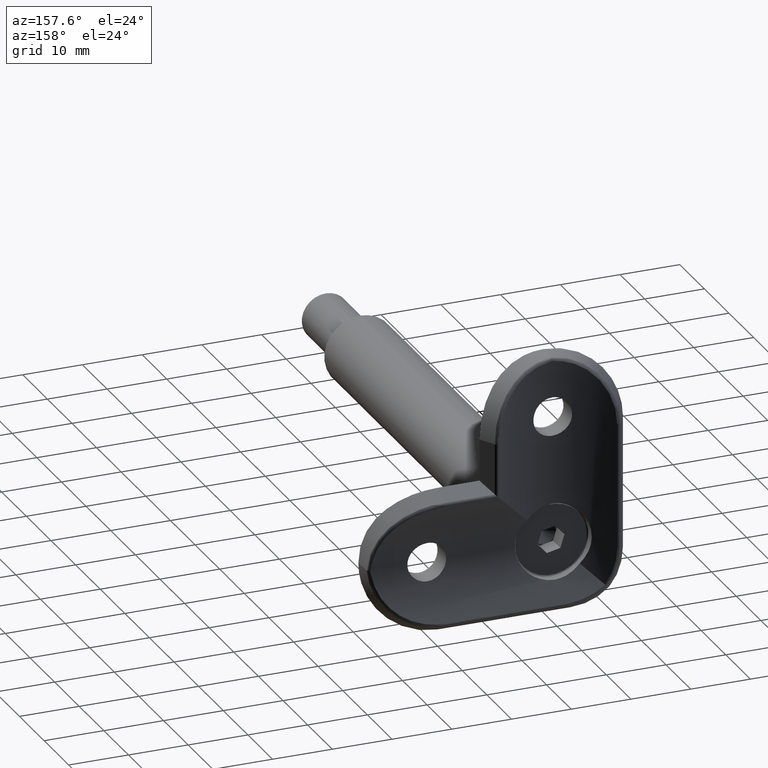
[diagram: clean part render]
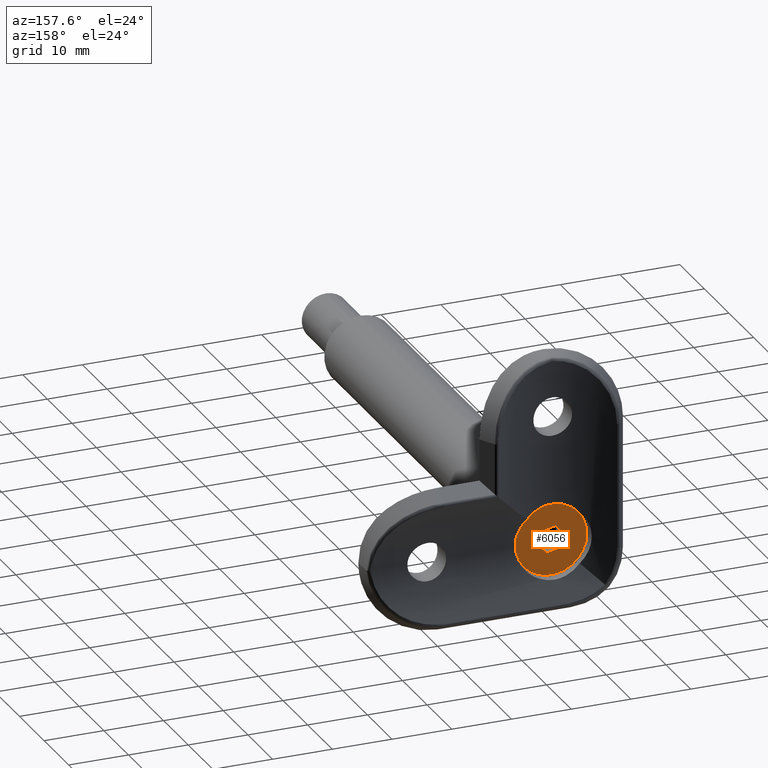
[diagram: same view with one face highlighted and labeled with its STEP entity id]
A machine part, auxiliary view. The second image highlights one B-rep face of the part: STEP entity #6056.
In plain terms, the highlighted planar face has unit normal (-0, 1, -0).
Its self-contained STEP definition (entity closure, byte-faithful):
#92 = PLANE ( 'NONE',  #3656 ) ;
#237 = CIRCLE ( 'NONE', #15357, 6.000000000000000000 ) ;
#375 = CARTESIAN_POINT ( 'NONE',  ( 2.309401076758502500, 5.022240126475751500E-017, 0.0000000000000000000 ) ) ;
#498 = VECTOR ( 'NONE', #12197, 1000.000000000000000 ) ;
#586 = FACE_OUTER_BOUND ( 'NONE', #12044, .T. ) ;
#720 = CARTESIAN_POINT ( 'NONE',  ( 1.154700538379251700, 1.999999999999999100, 0.0000000000000000000 ) ) ;
#806 = VECTOR ( 'NONE', #12336, 1000.000000000000100 ) ;
#927 = LINE ( 'NONE', #11369, #3349 ) ;
#958 = VECTOR ( 'NONE', #2773, 1000.000000000000100 ) ;
#1106 = EDGE_CURVE ( 'NONE', #3139, #7514, #11524, .T. ) ;
#1433 = CARTESIAN_POINT ( 'NONE',  ( 0.0000000000000000000, 1.799711739194228900E-031, -1.469576158976823800E-015 ) ) ;
#1797 = ORIENTED_EDGE ( 'NONE', *, *, #1106, .F. ) ;
#2183 = VERTEX_POINT ( 'NONE', #6516 ) ;
#2720 = DIRECTION ( 'NONE',  ( 0.0000000000000000000, 1.000000000000000000, 1.224646799147353200E-016 ) ) ;
#2773 = DIRECTION ( 'NONE',  ( 0.5000000000000001100, 0.8660254037844386000, 0.0000000000000000000 ) ) ;
#3139 = VERTEX_POINT ( 'NONE', #13081 ) ;
#3171 = VERTEX_POINT ( 'NONE', #14277 ) ;
#3349 = VECTOR ( 'NONE', #5488, 1000.000000000000000 ) ;
#3580 = CARTESIAN_POINT ( 'NONE',  ( -1.154700538379255000, -2.000000000000000000, 0.0000000000000000000 ) ) ;
#3593 = CARTESIAN_POINT ( 'NONE',  ( 7.347880794884119700E-016, -6.000000000000000000, -2.204364238465235400E-015 ) ) ;
#3656 = AXIS2_PLACEMENT_3D ( 'NONE', #9705, #11848, #5960 ) ;
#3707 = EDGE_LOOP ( 'NONE', ( #10204, #3994, #7123, #1797, #13314, #8031 ) ) ;
#3994 = ORIENTED_EDGE ( 'NONE', *, *, #7345, .F. ) ;
#4142 = LINE ( 'NONE', #10931, #958 ) ;
#4577 = EDGE_CURVE ( 'NONE', #5472, #2183, #6806, .T. ) ;
#4827 = EDGE_CURVE ( 'NONE', #12505, #14812, #11429, .T. ) ;
#5206 = VECTOR ( 'NONE', #14077, 1000.000000000000000 ) ;
#5472 = VERTEX_POINT ( 'NONE', #3580 ) ;
#5488 = DIRECTION ( 'NONE',  ( -1.000000000000000000, 0.0000000000000000000, 0.0000000000000000000 ) ) ;
#5578 = EDGE_CURVE ( 'NONE', #14812, #12505, #237, .T. ) ;
#5581 = CARTESIAN_POINT ( 'NONE',  ( -1.154700538379252400, 1.999999999999999600, 0.0000000000000000000 ) ) ;
#5960 = DIRECTION ( 'NONE',  ( 0.0000000000000000000, 1.000000000000000000, 1.224646799147353200E-016 ) ) ;
#6056 = ADVANCED_FACE ( 'NONE', ( #14034, #586 ), #92, .T. ) ;
#6154 = EDGE_CURVE ( 'NONE', #2183, #14450, #4142, .T. ) ;
#6516 = CARTESIAN_POINT ( 'NONE',  ( -2.309401076758504700, -1.734723475976807100E-015, -7.347880794884121700E-016 ) ) ;
#6806 = LINE ( 'NONE', #9964, #806 ) ;
#6848 = CARTESIAN_POINT ( 'NONE',  ( -1.154700538379252400, 1.999999999999999600, 0.0000000000000000000 ) ) ;
#7123 = ORIENTED_EDGE ( 'NONE', *, *, #13406, .F. ) ;
#7345 = EDGE_CURVE ( 'NONE', #3171, #5472, #927, .T. ) ;
#7514 = VERTEX_POINT ( 'NONE', #11969 ) ;
#8031 = ORIENTED_EDGE ( 'NONE', *, *, #6154, .F. ) ;
#8562 = DIRECTION ( 'NONE',  ( -0.0000000000000000000, 1.224646799147353200E-016, -1.000000000000000000 ) ) ;
#9705 = CARTESIAN_POINT ( 'NONE',  ( 0.0000000000000000000, 6.000000000000000000, 0.0000000000000000000 ) ) ;
#9808 = DIRECTION ( 'NONE',  ( -0.0000000000000000000, 1.224646799147353200E-016, -1.000000000000000000 ) ) ;
#9909 = ORIENTED_EDGE ( 'NONE', *, *, #5578, .T. ) ;
#9964 = CARTESIAN_POINT ( 'NONE',  ( -1.154700538379255000, -2.000000000000000000, 0.0000000000000000000 ) ) ;
#10200 = LINE ( 'NONE', #375, #498 ) ;
#10204 = ORIENTED_EDGE ( 'NONE', *, *, #4577, .F. ) ;
#10554 = AXIS2_PLACEMENT_3D ( 'NONE', #1433, #9808, #2720 ) ;
#10931 = CARTESIAN_POINT ( 'NONE',  ( -2.309401076758504700, -1.752598683377171700E-015, 0.0000000000000000000 ) ) ;
#11369 = CARTESIAN_POINT ( 'NONE',  ( 1.154700538379250600, -2.000000000000000000, -0.0000000000000000000 ) ) ;
#11429 = CIRCLE ( 'NONE', #10554, 6.000000000000000000 ) ;
#11524 = LINE ( 'NONE', #720, #5206 ) ;
#11660 = DIRECTION ( 'NONE',  ( 1.000000000000000000, -1.877893248421448300E-016, 0.0000000000000000000 ) ) ;
#11848 = DIRECTION ( 'NONE',  ( -0.0000000000000000000, 1.224646799147353200E-016, -1.000000000000000000 ) ) ;
#11903 = ORIENTED_EDGE ( 'NONE', *, *, #4827, .T. ) ;
#11969 = CARTESIAN_POINT ( 'NONE',  ( 2.309401076758502500, 5.022240126475751500E-017, 0.0000000000000000000 ) ) ;
#12044 = EDGE_LOOP ( 'NONE', ( #9909, #11903 ) ) ;
#12116 = LINE ( 'NONE', #5581, #13084 ) ;
#12197 = DIRECTION ( 'NONE',  ( -0.5000000000000001100, -0.8660254037844386000, -0.0000000000000000000 ) ) ;
#12336 = DIRECTION ( 'NONE',  ( -0.4999999999999997800, 0.8660254037844388200, 0.0000000000000000000 ) ) ;
#12505 = VERTEX_POINT ( 'NONE', #3593 ) ;
#13081 = CARTESIAN_POINT ( 'NONE',  ( 1.154700538379251700, 1.999999999999999100, 0.0000000000000000000 ) ) ;
#13084 = VECTOR ( 'NONE', #11660, 1000.000000000000000 ) ;
#13314 = ORIENTED_EDGE ( 'NONE', *, *, #14405, .F. ) ;
#13406 = EDGE_CURVE ( 'NONE', #7514, #3171, #10200, .T. ) ;
#13894 = CARTESIAN_POINT ( 'NONE',  ( 0.0000000000000000000, 6.000000000000000000, -7.347880794884117800E-016 ) ) ;
#14034 = FACE_BOUND ( 'NONE', #3707, .T. ) ;
#14077 = DIRECTION ( 'NONE',  ( 0.4999999999999998900, -0.8660254037844387100, 0.0000000000000000000 ) ) ;
#14277 = CARTESIAN_POINT ( 'NONE',  ( 1.154700538379250600, -2.000000000000000000, -0.0000000000000000000 ) ) ;
#14326 = DIRECTION ( 'NONE',  ( 0.0000000000000000000, 1.000000000000000000, 1.224646799147353200E-016 ) ) ;
#14405 = EDGE_CURVE ( 'NONE', #14450, #3139, #12116, .T. ) ;
#14436 = CARTESIAN_POINT ( 'NONE',  ( 0.0000000000000000000, 1.799711739194228900E-031, -1.469576158976823800E-015 ) ) ;
#14450 = VERTEX_POINT ( 'NONE', #6848 ) ;
#14812 = VERTEX_POINT ( 'NONE', #13894 ) ;
#15357 = AXIS2_PLACEMENT_3D ( 'NONE', #14436, #8562, #14326 ) ;